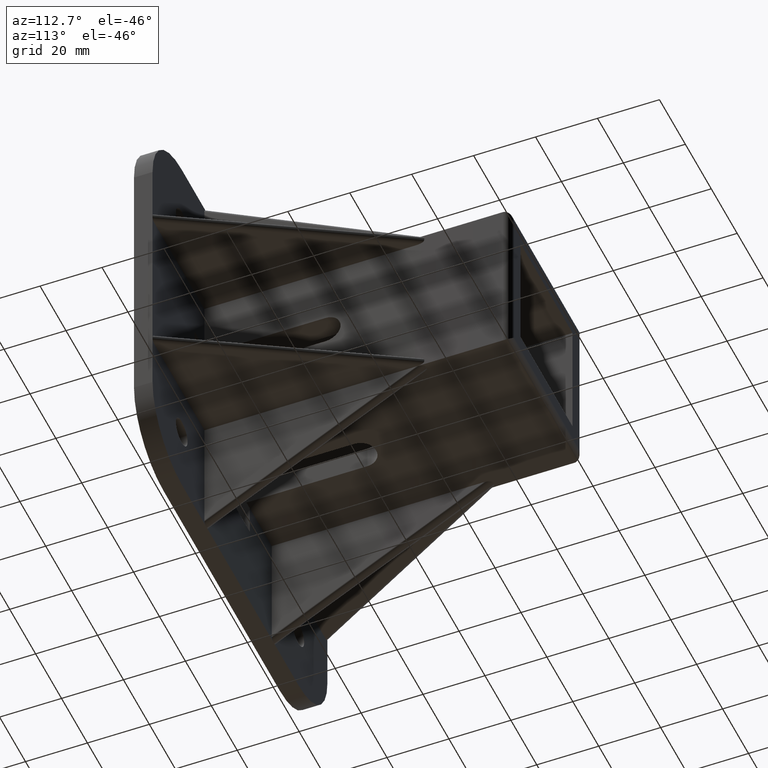
[diagram: clean part render]
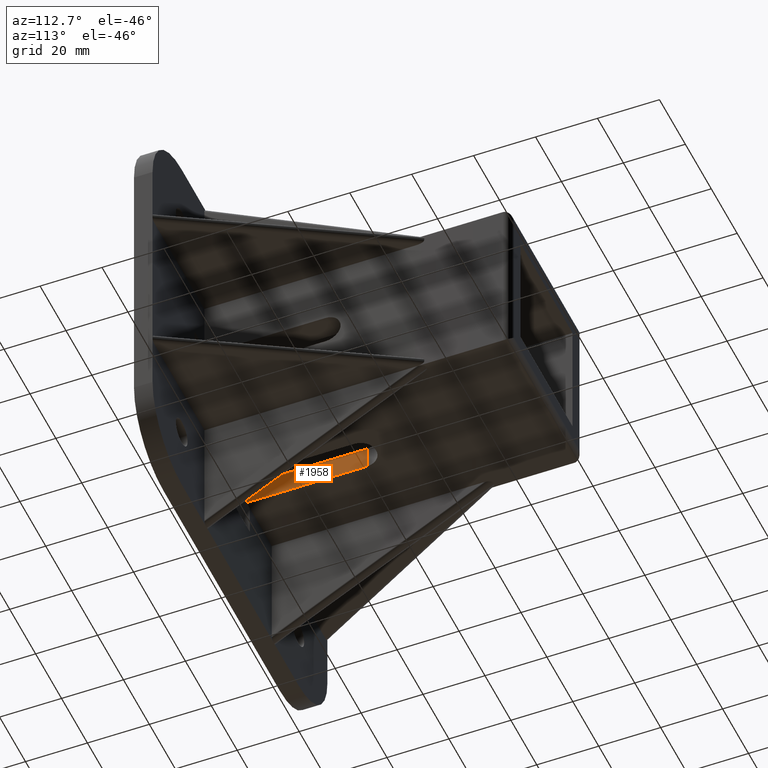
[diagram: same view with one face highlighted and labeled with its STEP entity id]
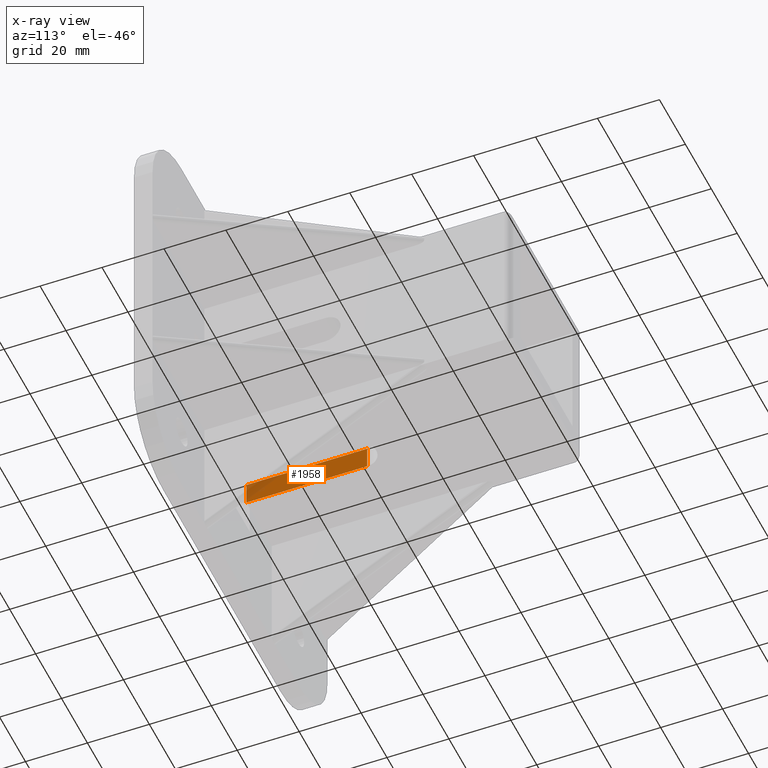
[diagram: x-ray of the same camera — body ghosted, the highlighted face saturated]
A machine part, auxiliary view. The second image highlights one B-rep face of the part: STEP entity #1958.
The next image is the same camera in x-ray: the body ghosted, the highlighted face saturated — about 13% of this face is hidden behind the body in this view.
In plain terms, the highlighted planar face has unit normal (1, -0, 0).
Its self-contained STEP definition (entity closure, byte-faithful):
#108=LINE('',#2943,#340);
#122=LINE('',#2977,#354);
#123=LINE('',#2979,#355);
#124=LINE('',#2980,#356);
#340=VECTOR('',#2336,39.);
#354=VECTOR('',#2360,7.50000000000002);
#355=VECTOR('',#2361,39.);
#356=VECTOR('',#2362,7.50000000000001);
#524=PLANE('',#2089);
#616=FACE_OUTER_BOUND('',#731,.T.);
#731=EDGE_LOOP('',(#1434,#1435,#1436,#1437));
#925=VERTEX_POINT('',#2940);
#926=VERTEX_POINT('',#2942);
#941=VERTEX_POINT('',#2976);
#942=VERTEX_POINT('',#2978);
#1114=EDGE_CURVE('',#925,#926,#108,.T.);
#1131=EDGE_CURVE('',#925,#941,#122,.T.);
#1132=EDGE_CURVE('',#942,#941,#123,.T.);
#1133=EDGE_CURVE('',#926,#942,#124,.T.);
#1434=ORIENTED_EDGE('',*,*,#1114,.F.);
#1435=ORIENTED_EDGE('',*,*,#1131,.T.);
#1436=ORIENTED_EDGE('',*,*,#1132,.F.);
#1437=ORIENTED_EDGE('',*,*,#1133,.F.);
#1958=ADVANCED_FACE('',(#616),#524,.T.);
#2089=AXIS2_PLACEMENT_3D('',#2975,#2358,#2359);
#2336=DIRECTION('',(9.6373526443156E-17,1.,0.));
#2358=DIRECTION('center_axis',(1.,-9.6373526443156E-17,0.));
#2359=DIRECTION('ref_axis',(0.,1.,0.));
#2360=DIRECTION('',(0.,0.,-1.));
#2361=DIRECTION('',(-9.6373526443156E-17,-1.,0.));
#2362=DIRECTION('',(0.,0.,-1.));
#2940=CARTESIAN_POINT('',(-5.,6.,-20.));
#2942=CARTESIAN_POINT('',(-5.,45.,-20.));
#2943=CARTESIAN_POINT('',(-5.,6.,-20.));
#2975=CARTESIAN_POINT('Origin',(-5.,2.44921270764475E-15,70.9901951359278));
#2976=CARTESIAN_POINT('',(-5.,6.,-27.5));
#2977=CARTESIAN_POINT('',(-5.,6.,70.9901951359278));
#2978=CARTESIAN_POINT('',(-5.,45.,-27.5));
#2979=CARTESIAN_POINT('',(-5.,2.44921270764475E-15,-27.5));
#2980=CARTESIAN_POINT('',(-5.,45.,70.9901951359278));